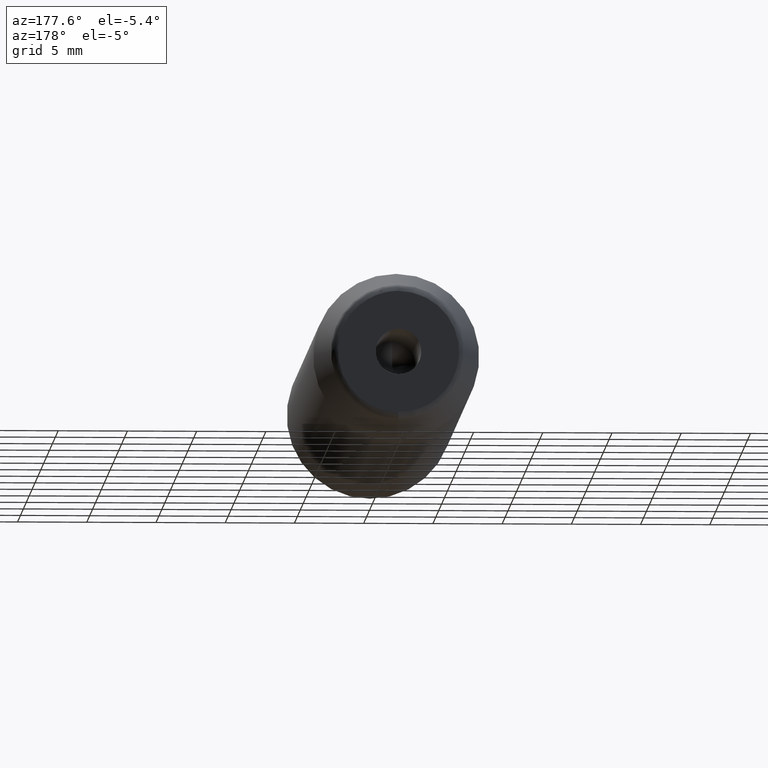
[diagram: clean part render]
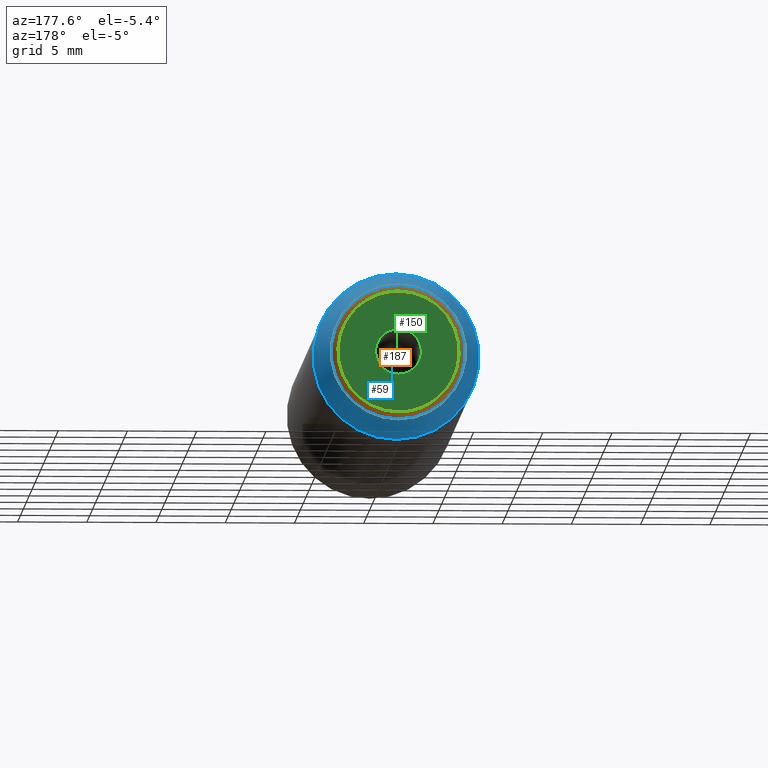
[diagram: same view with three faces highlighted in distinct colors, each labeled with its STEP entity id]
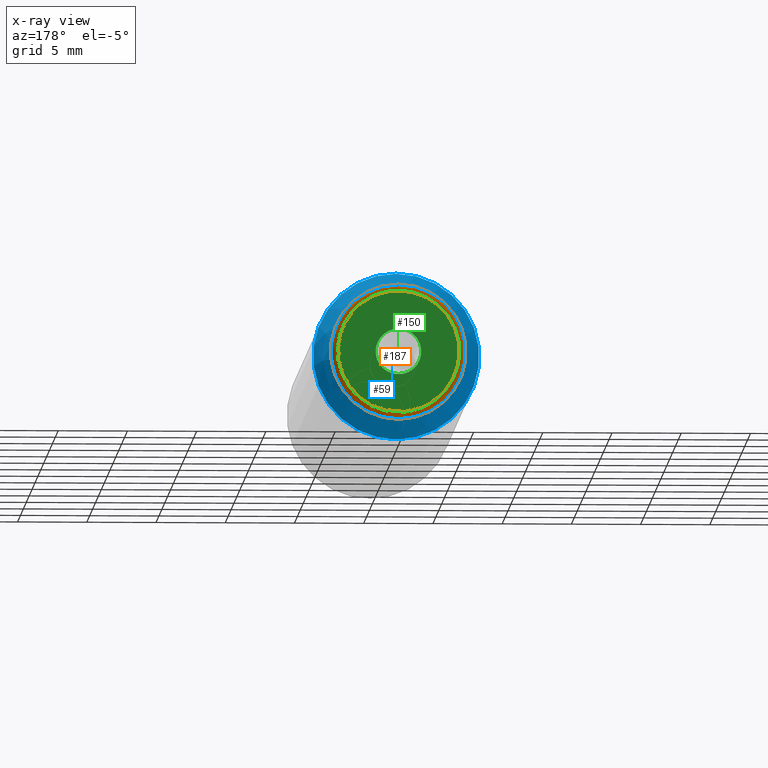
[diagram: x-ray of the same camera — body ghosted, the three highlighted faces saturated]
A machine part, auxiliary view with three faces highlighted in distinct colors.
The next image is the same camera in x-ray (body ghosted, the three faces saturated) — at least one of them is partly hidden behind the body in this view.
Their STEP definitions:

[orange] entity #187 — the highlighted face is a freeform B-spline surface patch.
#13 = CARTESIAN_POINT ( 'NONE',  ( -9.218466664468710547, 50.00000000000000000, 4.609233332234355274 ) ) ;
#21 = CARTESIAN_POINT ( 'NONE',  ( -9.719289064679403012, 49.64913749651296371, -4.859644532339701506 ) ) ;
#22 = CARTESIAN_POINT ( 'NONE',  ( 5.483787781522369726E-16, 50.00000000000000000, -4.382404543304999400 ) ) ;
#36 = CARTESIAN_POINT ( 'NONE',  ( 9.583974353807436231, 49.86564103399577164, -4.791987176903718115 ) ) ;
#37 = EDGE_LOOP ( 'NONE', ( #186 ) ) ;
#38 = VERTEX_POINT ( 'NONE', #135 ) ;
#44 = CARTESIAN_POINT ( 'NONE',  ( -9.583974353807436231, 49.86564103399577164, -4.791987176903718115 ) ) ;
#53 =( BOUNDED_CURVE ( )  B_SPLINE_CURVE ( 3, ( #216, #90, #92, #211 ),
 .UNSPECIFIED., .F., .F. ) 
 B_SPLINE_CURVE_WITH_KNOTS ( ( 4, 4 ),
 ( 0.000000000000000000, 1.000000000000000000 ),
 .UNSPECIFIED. ) 
 CURVE ( )  GEOMETRIC_REPRESENTATION_ITEM ( )  RATIONAL_B_SPLINE_CURVE ( ( 1.000000000000000000, 0.3333333333333333703, 0.3333333333333333703, 1.000000000000000000 ) ) 
 REPRESENTATION_ITEM ( '' )  );
#73 = CARTESIAN_POINT ( 'NONE',  ( -8.764809086609998801, 50.00000000000000711, -4.382404543304999400 ) ) ;
#74 = CIRCLE ( 'NONE', #136, 4.859644532331230948 ) ;
#90 = CARTESIAN_POINT ( 'NONE',  ( -8.764809086609997024, 50.00000000000000000, 4.382404543304999400 ) ) ;
#92 = CARTESIAN_POINT ( 'NONE',  ( -8.764809086609997024, 50.00000000000000000, -4.382404543305000288 ) ) ;
#95 = VERTEX_POINT ( 'NONE', #140 ) ;
#96 = EDGE_CURVE ( 'NONE', #38, #38, #74, .T. ) ;
#97 = CARTESIAN_POINT ( 'NONE',  ( -9.218466664468710547, 50.00000000000000000, -4.609233332234355274 ) ) ;
#99 = CARTESIAN_POINT ( 'NONE',  ( 0.000000000000000000, 49.86564103399577164, 4.791987176903717227 ) ) ;
#100 = CARTESIAN_POINT ( 'NONE',  ( 8.764809086609998801, 50.00000000000000711, -4.382404543304999400 ) ) ;
#114 = CARTESIAN_POINT ( 'NONE',  ( -9.583974353807436231, 49.86564103399577164, 4.791987176903718115 ) ) ;
#121 = CARTESIAN_POINT ( 'NONE',  ( 9.719289064679403012, 49.64913749651296371, 4.859644532339701506 ) ) ;
#122 = FACE_OUTER_BOUND ( 'NONE', #277, .T. ) ;
#124 = CARTESIAN_POINT ( 'NONE',  ( 0.000000000000000000, 50.00000000000000000, 4.382404543304999400 ) ) ;
#132 = ORIENTED_EDGE ( 'NONE', *, *, #245, .T. ) ;
#133 = CARTESIAN_POINT ( 'NONE',  ( 0.000000000000000000, 49.64913749651297081, 4.859644532339702394 ) ) ;
#135 = CARTESIAN_POINT ( 'NONE',  ( 0.000000000000000000, 49.64913749651032049, -4.859644532331230948 ) ) ;
#136 = AXIS2_PLACEMENT_3D ( 'NONE', #296, #228, #182 ) ;
#140 = CARTESIAN_POINT ( 'NONE',  ( 0.000000000000000000, 50.00000000000000000, 4.382404543304999400 ) ) ;
#144 = FACE_OUTER_BOUND ( 'NONE', #37, .T. ) ;
#160 = CARTESIAN_POINT ( 'NONE',  ( -9.719289064679403012, 49.64913749651296371, 4.859644532339701506 ) ) ;
#165 = CARTESIAN_POINT ( 'NONE',  ( 8.764809086609998801, 50.00000000000000711, 4.382404543304999400 ) ) ;
#166 = CARTESIAN_POINT ( 'NONE',  ( 0.000000000000000000, 49.64913749651297081, 4.859644532339702394 ) ) ;
#175 = VERTEX_POINT ( 'NONE', #22 ) ;
#182 = DIRECTION ( 'NONE',  ( 0.000000000000000000, 0.000000000000000000, -1.000000000000000000 ) ) ;
#185 = CARTESIAN_POINT ( 'NONE',  ( 9.218466664468710547, 50.00000000000000000, 4.609233332234355274 ) ) ;
#186 = ORIENTED_EDGE ( 'NONE', *, *, #96, .F. ) ;
#187 = ADVANCED_FACE ( 'NONE', ( #122, #144 ), #304, .T. ) ;
#189 =( BOUNDED_CURVE ( )  B_SPLINE_CURVE ( 3, ( #278, #306, #260, #205 ),
 .UNSPECIFIED., .F., .F. ) 
 B_SPLINE_CURVE_WITH_KNOTS ( ( 4, 4 ),
 ( 0.000000000000000000, 1.000000000000000000 ),
 .UNSPECIFIED. ) 
 CURVE ( )  GEOMETRIC_REPRESENTATION_ITEM ( )  RATIONAL_B_SPLINE_CURVE ( ( 1.000000000000000000, 0.3333333333333333703, 0.3333333333333333703, 1.000000000000000000 ) ) 
 REPRESENTATION_ITEM ( '' )  );
#205 = CARTESIAN_POINT ( 'NONE',  ( 0.000000000000000000, 50.00000000000000000, 4.382404543304999400 ) ) ;
#207 = CARTESIAN_POINT ( 'NONE',  ( 9.719289064679403012, 49.64913749651296371, -4.859644532339701506 ) ) ;
#209 = ORIENTED_EDGE ( 'NONE', *, *, #213, .T. ) ;
#211 = CARTESIAN_POINT ( 'NONE',  ( 5.483787781522369726E-16, 50.00000000000000000, -4.382404543304999400 ) ) ;
#213 = EDGE_CURVE ( 'NONE', #95, #175, #53, .T. ) ;
#214 = CARTESIAN_POINT ( 'NONE',  ( 9.583974353807436231, 49.86564103399577164, 4.791987176903718115 ) ) ;
#216 = CARTESIAN_POINT ( 'NONE',  ( 0.000000000000000000, 50.00000000000000000, 4.382404543304999400 ) ) ;
#228 = DIRECTION ( 'NONE',  ( 0.000000000000000000, -1.000000000000000000, 0.000000000000000000 ) ) ;
#230 = CARTESIAN_POINT ( 'NONE',  ( 0.000000000000000000, 49.99999999999998579, -4.609233332234356162 ) ) ;
#233 = CARTESIAN_POINT ( 'NONE',  ( 9.218466664468710547, 50.00000000000000000, -4.609233332234355274 ) ) ;
#241 = CARTESIAN_POINT ( 'NONE',  ( 0.000000000000000000, 49.99999999999998579, 4.609233332234356162 ) ) ;
#245 = EDGE_CURVE ( 'NONE', #175, #95, #189, .T. ) ;
#258 = CARTESIAN_POINT ( 'NONE',  ( 0.000000000000000000, 49.86564103399577164, -4.791987176903717227 ) ) ;
#260 = CARTESIAN_POINT ( 'NONE',  ( 8.764809086609997024, 50.00000000000000000, 4.382404543304999400 ) ) ;
#265 = CARTESIAN_POINT ( 'NONE',  ( -8.764809086609998801, 50.00000000000000711, 4.382404543304999400 ) ) ;
#277 = EDGE_LOOP ( 'NONE', ( #209, #132 ) ) ;
#278 = CARTESIAN_POINT ( 'NONE',  ( 5.483787781522369726E-16, 50.00000000000000000, -4.382404543304999400 ) ) ;
#280 = CARTESIAN_POINT ( 'NONE',  ( 0.000000000000000000, 49.86564103399577164, 4.791987176903717227 ) ) ;
#282 = CARTESIAN_POINT ( 'NONE',  ( 0.000000000000000000, 49.64913749651297081, -4.859644532339702394 ) ) ;
#285 = CARTESIAN_POINT ( 'NONE',  ( 0.000000000000000000, 50.00000000000000000, -4.382404543304999400 ) ) ;
#296 = CARTESIAN_POINT ( 'NONE',  ( 0.000000000000000000, 49.64913749651032049, 0.000000000000000000 ) ) ;
#297 = CARTESIAN_POINT ( 'NONE',  ( 0.000000000000000000, 49.99999999999998579, 4.609233332234356162 ) ) ;
#304 =( BOUNDED_SURFACE ( )  B_SPLINE_SURFACE ( 3, 3, ( 
 ( #307, #165, #100, #285, #73, #265, #124 ),
 ( #241, #185, #233, #230, #97, #13, #297 ),
 ( #280, #214, #36, #258, #44, #114, #99 ),
 ( #133, #121, #207, #282, #21, #160, #166 ) ),
 .UNSPECIFIED., .F., .T., .F. ) 
 B_SPLINE_SURFACE_WITH_KNOTS ( ( 4, 4 ),
 ( 4, 3, 4 ),
 ( 0.000000000000000000, 1.000000000000000000 ),
 ( 0.000000000000000000, 0.5000000000000000000, 1.000000000000000000 ),
 .UNSPECIFIED. ) 
 GEOMETRIC_REPRESENTATION_ITEM ( )  RATIONAL_B_SPLINE_SURFACE ( (
 ( 1.000000000000000000, 0.3333333333333333148, 0.3333333333333333148, 1.000000000000000000, 0.3333333333333333148, 0.3333333333333333148, 1.000000000000000000),
 ( 0.8704604635415963410, 0.2901534878471987433, 0.2901534878471987433, 0.8704604635415963410, 0.2901534878471987433, 0.2901534878471987433, 0.8704604635415963410),
 ( 0.8704604635415963410, 0.2901534878471987433, 0.2901534878471987433, 0.8704604635415963410, 0.2901534878471987433, 0.2901534878471987433, 0.8704604635415963410),
 ( 1.000000000000000000, 0.3333333333333333148, 0.3333333333333333148, 1.000000000000000000, 0.3333333333333333148, 0.3333333333333333148, 1.000000000000000000) ) ) 
 REPRESENTATION_ITEM ( '' )  SURFACE ( )  );
#306 = CARTESIAN_POINT ( 'NONE',  ( 8.764809086609997024, 50.00000000000000000, -4.382404543304998512 ) ) ;
#307 = CARTESIAN_POINT ( 'NONE',  ( 0.000000000000000000, 50.00000000000000000, 4.382404543304999400 ) ) ;

[blue] entity #59 — the highlighted conical surface has half-angle 17.354 deg.
#9 = FACE_BOUND ( 'NONE', #62, .T. ) ;
#10 = CARTESIAN_POINT ( 'NONE',  ( 0.000000000000000000, 45.99999999999998579, 0.000000000000000000 ) ) ;
#12 = DIRECTION ( 'NONE',  ( 0.000000000000000000, -1.000000000000000000, 0.000000000000000000 ) ) ;
#32 = EDGE_LOOP ( 'NONE', ( #255 ) ) ;
#38 = VERTEX_POINT ( 'NONE', #135 ) ;
#59 = ADVANCED_FACE ( 'NONE', ( #162, #9 ), #246, .T. ) ;
#62 = EDGE_LOOP ( 'NONE', ( #229 ) ) ;
#65 = DIRECTION ( 'NONE',  ( -0.000000000000000000, -1.000000000000000000, -0.000000000000000000 ) ) ;
#70 = VERTEX_POINT ( 'NONE', #254 ) ;
#71 = CIRCLE ( 'NONE', #103, 6.000000000000000888 ) ;
#74 = CIRCLE ( 'NONE', #136, 4.859644532331230948 ) ;
#96 = EDGE_CURVE ( 'NONE', #38, #38, #74, .T. ) ;
#103 = AXIS2_PLACEMENT_3D ( 'NONE', #10, #65, #116 ) ;
#116 = DIRECTION ( 'NONE',  ( 0.000000000000000000, 0.000000000000000000, -1.000000000000000000 ) ) ;
#131 = CARTESIAN_POINT ( 'NONE',  ( 0.000000000000000000, 46.00000000007185008, 0.000000000000000000 ) ) ;
#135 = CARTESIAN_POINT ( 'NONE',  ( 0.000000000000000000, 49.64913749651032049, -4.859644532331230948 ) ) ;
#136 = AXIS2_PLACEMENT_3D ( 'NONE', #296, #228, #182 ) ;
#152 = AXIS2_PLACEMENT_3D ( 'NONE', #131, #12, #259 ) ;
#162 = FACE_OUTER_BOUND ( 'NONE', #32, .T. ) ;
#182 = DIRECTION ( 'NONE',  ( 0.000000000000000000, 0.000000000000000000, -1.000000000000000000 ) ) ;
#228 = DIRECTION ( 'NONE',  ( 0.000000000000000000, -1.000000000000000000, 0.000000000000000000 ) ) ;
#229 = ORIENTED_EDGE ( 'NONE', *, *, #96, .T. ) ;
#246 = CONICAL_SURFACE ( 'NONE', #152, 5.999999999971805664, 0.3028848683740845149 ) ;
#254 = CARTESIAN_POINT ( 'NONE',  ( 0.000000000000000000, 45.99999999999998579, -6.000000000000000888 ) ) ;
#255 = ORIENTED_EDGE ( 'NONE', *, *, #292, .F. ) ;
#259 = DIRECTION ( 'NONE',  ( 0.000000000000000000, 0.000000000000000000, -1.000000000000000000 ) ) ;
#292 = EDGE_CURVE ( 'NONE', #70, #70, #71, .T. ) ;
#296 = CARTESIAN_POINT ( 'NONE',  ( 0.000000000000000000, 49.64913749651032049, 0.000000000000000000 ) ) ;

[green] entity #150 — the highlighted planar face has unit normal (0, 1, 0).
#20 = PLANE ( 'NONE',  #170 ) ;
#22 = CARTESIAN_POINT ( 'NONE',  ( 5.483787781522369726E-16, 50.00000000000000000, -4.382404543304999400 ) ) ;
#23 = FACE_OUTER_BOUND ( 'NONE', #181, .T. ) ;
#49 = DIRECTION ( 'NONE',  ( 0.000000000000000000, 0.000000000000000000, 1.000000000000000000 ) ) ;
#53 =( BOUNDED_CURVE ( )  B_SPLINE_CURVE ( 3, ( #216, #90, #92, #211 ),
 .UNSPECIFIED., .F., .F. ) 
 B_SPLINE_CURVE_WITH_KNOTS ( ( 4, 4 ),
 ( 0.000000000000000000, 1.000000000000000000 ),
 .UNSPECIFIED. ) 
 CURVE ( )  GEOMETRIC_REPRESENTATION_ITEM ( )  RATIONAL_B_SPLINE_CURVE ( ( 1.000000000000000000, 0.3333333333333333703, 0.3333333333333333703, 1.000000000000000000 ) ) 
 REPRESENTATION_ITEM ( '' )  );
#90 = CARTESIAN_POINT ( 'NONE',  ( -8.764809086609997024, 50.00000000000000000, 4.382404543304999400 ) ) ;
#92 = CARTESIAN_POINT ( 'NONE',  ( -8.764809086609997024, 50.00000000000000000, -4.382404543305000288 ) ) ;
#95 = VERTEX_POINT ( 'NONE', #140 ) ;
#98 = DIRECTION ( 'NONE',  ( 0.000000000000000000, -0.000000000000000000, 1.000000000000000000 ) ) ;
#120 = CARTESIAN_POINT ( 'NONE',  ( 0.000000000000000000, 50.00000000000000000, 0.000000000000000000 ) ) ;
#140 = CARTESIAN_POINT ( 'NONE',  ( 0.000000000000000000, 50.00000000000000000, 4.382404543304999400 ) ) ;
#145 = CARTESIAN_POINT ( 'NONE',  ( 0.000000000000000000, 50.00000000000000000, 1.649999999999998579 ) ) ;
#148 = DIRECTION ( 'NONE',  ( 0.000000000000000000, 1.000000000000000000, 0.000000000000000000 ) ) ;
#150 = ADVANCED_FACE ( 'NONE', ( #305, #23 ), #20, .T. ) ;
#156 = EDGE_CURVE ( 'NONE', #284, #284, #290, .T. ) ;
#168 = DIRECTION ( 'NONE',  ( -0.000000000000000000, -1.000000000000000000, -0.000000000000000000 ) ) ;
#170 = AXIS2_PLACEMENT_3D ( 'NONE', #261, #148, #98 ) ;
#175 = VERTEX_POINT ( 'NONE', #22 ) ;
#181 = EDGE_LOOP ( 'NONE', ( #184, #236 ) ) ;
#184 = ORIENTED_EDGE ( 'NONE', *, *, #245, .F. ) ;
#189 =( BOUNDED_CURVE ( )  B_SPLINE_CURVE ( 3, ( #278, #306, #260, #205 ),
 .UNSPECIFIED., .F., .F. ) 
 B_SPLINE_CURVE_WITH_KNOTS ( ( 4, 4 ),
 ( 0.000000000000000000, 1.000000000000000000 ),
 .UNSPECIFIED. ) 
 CURVE ( )  GEOMETRIC_REPRESENTATION_ITEM ( )  RATIONAL_B_SPLINE_CURVE ( ( 1.000000000000000000, 0.3333333333333333703, 0.3333333333333333703, 1.000000000000000000 ) ) 
 REPRESENTATION_ITEM ( '' )  );
#205 = CARTESIAN_POINT ( 'NONE',  ( 0.000000000000000000, 50.00000000000000000, 4.382404543304999400 ) ) ;
#211 = CARTESIAN_POINT ( 'NONE',  ( 5.483787781522369726E-16, 50.00000000000000000, -4.382404543304999400 ) ) ;
#213 = EDGE_CURVE ( 'NONE', #95, #175, #53, .T. ) ;
#216 = CARTESIAN_POINT ( 'NONE',  ( 0.000000000000000000, 50.00000000000000000, 4.382404543304999400 ) ) ;
#232 = AXIS2_PLACEMENT_3D ( 'NONE', #120, #168, #49 ) ;
#236 = ORIENTED_EDGE ( 'NONE', *, *, #213, .F. ) ;
#245 = EDGE_CURVE ( 'NONE', #175, #95, #189, .T. ) ;
#252 = ORIENTED_EDGE ( 'NONE', *, *, #156, .T. ) ;
#260 = CARTESIAN_POINT ( 'NONE',  ( 8.764809086609997024, 50.00000000000000000, 4.382404543304999400 ) ) ;
#261 = CARTESIAN_POINT ( 'NONE',  ( 0.000000000000000000, 50.00000000000000000, 0.000000000000000000 ) ) ;
#278 = CARTESIAN_POINT ( 'NONE',  ( 5.483787781522369726E-16, 50.00000000000000000, -4.382404543304999400 ) ) ;
#284 = VERTEX_POINT ( 'NONE', #145 ) ;
#290 = CIRCLE ( 'NONE', #232, 1.649999999999998579 ) ;
#298 = EDGE_LOOP ( 'NONE', ( #252 ) ) ;
#305 = FACE_BOUND ( 'NONE', #298, .T. ) ;
#306 = CARTESIAN_POINT ( 'NONE',  ( 8.764809086609997024, 50.00000000000000000, -4.382404543304998512 ) ) ;